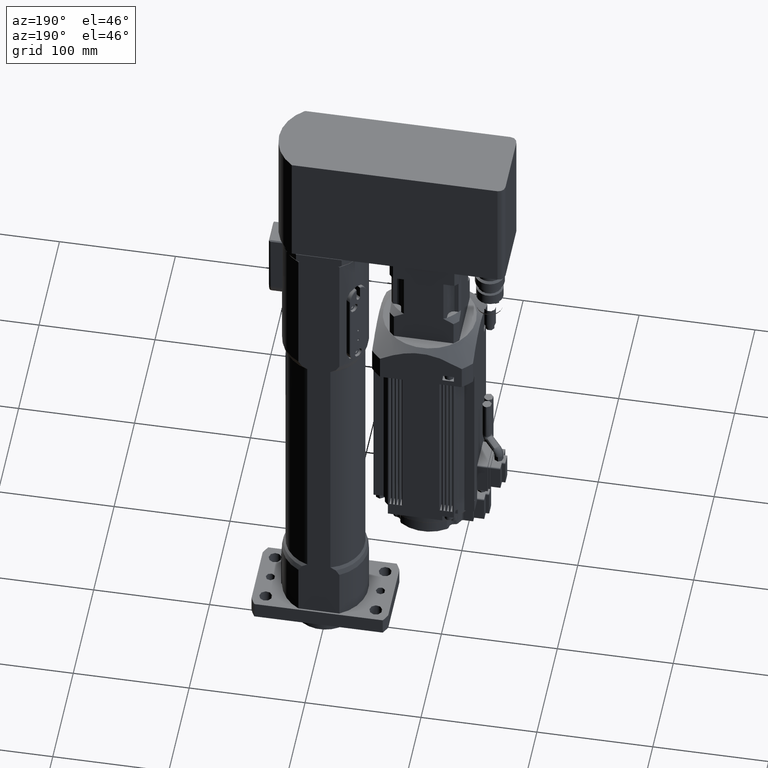
[diagram: clean part render]
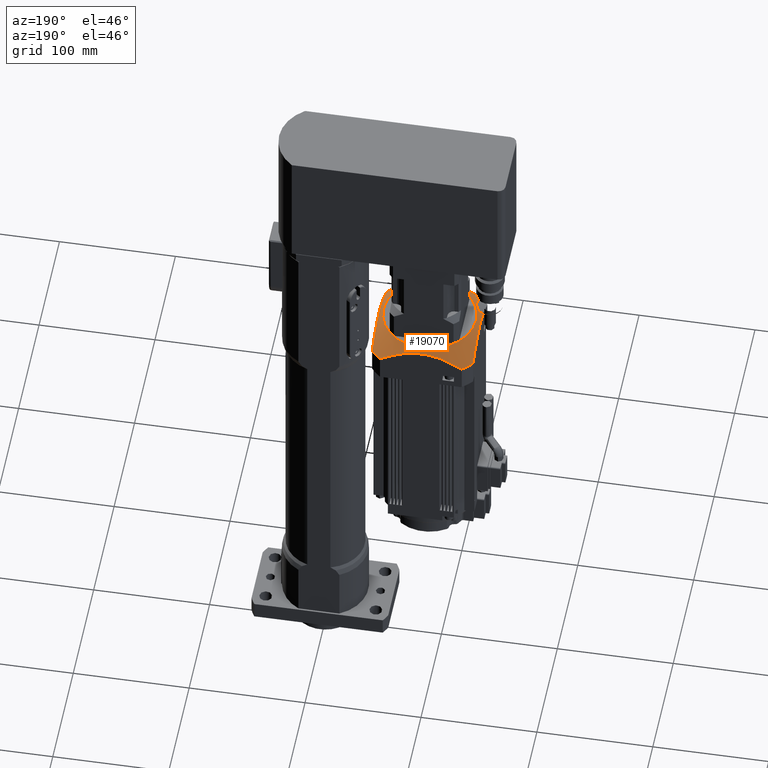
[diagram: same view with one face highlighted and labeled with its STEP entity id]
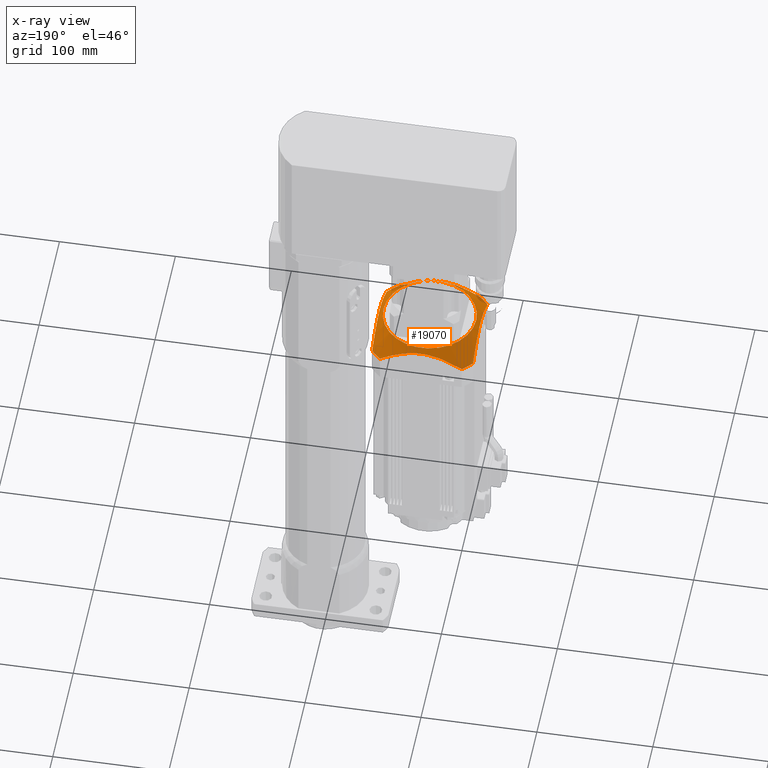
[diagram: x-ray of the same camera — body ghosted, the highlighted face saturated]
A machine part, auxiliary view. The second image highlights one B-rep face of the part: STEP entity #19070.
The next image is the same camera in x-ray: the body ghosted, the highlighted face saturated — about 4% of this face is hidden behind the body in this view.
In plain terms, the highlighted conical surface has half-angle 45 deg.
Its self-contained STEP definition (entity closure, byte-faithful):
#53=(
BOUNDED_CURVE()
B_SPLINE_CURVE(2,(#30013,#30014,#30015),.UNSPECIFIED.,.F.,.F.)
B_SPLINE_CURVE_WITH_KNOTS((3,3),(0.,3.74165738677394),.UNSPECIFIED.)
CURVE()
GEOMETRIC_REPRESENTATION_ITEM()
RATIONAL_B_SPLINE_CURVE((1.,1.14367816091954,1.14367816091954))
REPRESENTATION_ITEM('')
);
#54=(
BOUNDED_CURVE()
B_SPLINE_CURVE(2,(#30019,#30020,#30021),.UNSPECIFIED.,.F.,.F.)
B_SPLINE_CURVE_WITH_KNOTS((3,3),(0.,7.48331477354788),.UNSPECIFIED.)
CURVE()
GEOMETRIC_REPRESENTATION_ITEM()
RATIONAL_B_SPLINE_CURVE((1.,1.28735632183908,1.))
REPRESENTATION_ITEM('')
);
#55=(
BOUNDED_CURVE()
B_SPLINE_CURVE(2,(#30025,#30026,#30027),.UNSPECIFIED.,.F.,.F.)
B_SPLINE_CURVE_WITH_KNOTS((3,3),(0.,7.48331477354788),.UNSPECIFIED.)
CURVE()
GEOMETRIC_REPRESENTATION_ITEM()
RATIONAL_B_SPLINE_CURVE((1.,1.28735632183908,1.))
REPRESENTATION_ITEM('')
);
#56=(
BOUNDED_CURVE()
B_SPLINE_CURVE(2,(#30031,#30032,#30033),.UNSPECIFIED.,.F.,.F.)
B_SPLINE_CURVE_WITH_KNOTS((3,3),(0.,7.48331477354788),.UNSPECIFIED.)
CURVE()
GEOMETRIC_REPRESENTATION_ITEM()
RATIONAL_B_SPLINE_CURVE((1.,1.28735632183908,1.))
REPRESENTATION_ITEM('')
);
#57=(
BOUNDED_CURVE()
B_SPLINE_CURVE(2,(#30036,#30037,#30038),.UNSPECIFIED.,.F.,.F.)
B_SPLINE_CURVE_WITH_KNOTS((3,3),(3.74165738677394,7.48331477354788),
 .UNSPECIFIED.)
CURVE()
GEOMETRIC_REPRESENTATION_ITEM()
RATIONAL_B_SPLINE_CURVE((1.14367816091954,1.14367816091954,1.))
REPRESENTATION_ITEM('')
);
#348=CONICAL_SURFACE('',#20588,48.,0.785398163397449);
#1908=LINE('',#30011,#3525);
#3525=VECTOR('',#24432,48.);
#5081=FACE_OUTER_BOUND('',#6213,.T.);
#6213=EDGE_LOOP('',(#14798,#14799,#14800,#14801,#14802,#14803,#14804,#14805,
#14806,#14807,#14808,#14809));
#7330=CIRCLE('',#20583,40.);
#7335=CIRCLE('',#20589,56.);
#7336=CIRCLE('',#20590,56.);
#7337=CIRCLE('',#20591,56.);
#7338=CIRCLE('',#20592,56.);
#8614=VERTEX_POINT('',#29991);
#8623=VERTEX_POINT('',#30010);
#8624=VERTEX_POINT('',#30012);
#8625=VERTEX_POINT('',#30016);
#8626=VERTEX_POINT('',#30018);
#8627=VERTEX_POINT('',#30022);
#8628=VERTEX_POINT('',#30024);
#8629=VERTEX_POINT('',#30028);
#8630=VERTEX_POINT('',#30030);
#8631=VERTEX_POINT('',#30034);
#10810=EDGE_CURVE('',#8614,#8614,#7330,.T.);
#10819=EDGE_CURVE('',#8614,#8623,#1908,.T.);
#10820=EDGE_CURVE('',#8624,#8623,#53,.T.);
#10821=EDGE_CURVE('',#8625,#8624,#7335,.T.);
#10822=EDGE_CURVE('',#8626,#8625,#54,.T.);
#10823=EDGE_CURVE('',#8627,#8626,#7336,.T.);
#10824=EDGE_CURVE('',#8628,#8627,#55,.T.);
#10825=EDGE_CURVE('',#8629,#8628,#7337,.T.);
#10826=EDGE_CURVE('',#8630,#8629,#56,.T.);
#10827=EDGE_CURVE('',#8631,#8630,#7338,.T.);
#10828=EDGE_CURVE('',#8623,#8631,#57,.T.);
#14798=ORIENTED_EDGE('',*,*,#10810,.F.);
#14799=ORIENTED_EDGE('',*,*,#10819,.T.);
#14800=ORIENTED_EDGE('',*,*,#10820,.F.);
#14801=ORIENTED_EDGE('',*,*,#10821,.F.);
#14802=ORIENTED_EDGE('',*,*,#10822,.F.);
#14803=ORIENTED_EDGE('',*,*,#10823,.F.);
#14804=ORIENTED_EDGE('',*,*,#10824,.F.);
#14805=ORIENTED_EDGE('',*,*,#10825,.F.);
#14806=ORIENTED_EDGE('',*,*,#10826,.F.);
#14807=ORIENTED_EDGE('',*,*,#10827,.F.);
#14808=ORIENTED_EDGE('',*,*,#10828,.F.);
#14809=ORIENTED_EDGE('',*,*,#10819,.F.);
#19070=ADVANCED_FACE('',(#5081),#348,.T.);
#20583=AXIS2_PLACEMENT_3D('',#29992,#24416,#24417);
#20588=AXIS2_PLACEMENT_3D('',#30009,#24430,#24431);
#20589=AXIS2_PLACEMENT_3D('',#30017,#24433,#24434);
#20590=AXIS2_PLACEMENT_3D('',#30023,#24435,#24436);
#20591=AXIS2_PLACEMENT_3D('',#30029,#24437,#24438);
#20592=AXIS2_PLACEMENT_3D('',#30035,#24439,#24440);
#24416=DIRECTION('center_axis',(2.46519032881568E-32,4.87512283120822E-48,
1.));
#24417=DIRECTION('ref_axis',(-1.,2.7755575615629E-17,2.46519032881568E-32));
#24430=DIRECTION('center_axis',(-2.46519032881568E-32,-4.87512283120822E-48,
-1.));
#24431=DIRECTION('ref_axis',(-1.,2.7755575615629E-17,2.46519032881568E-32));
#24432=DIRECTION('',(0.707106781186548,-1.06221761357097E-16,-0.707106781186547));
#24433=DIRECTION('center_axis',(-2.46519032881568E-32,-4.87512283120822E-48,
-1.));
#24434=DIRECTION('ref_axis',(0.776785714285714,0.629764999092227,-1.91492463041932E-32));
#24435=DIRECTION('center_axis',(-2.46519032881568E-32,-4.87512283120822E-48,
-1.));
#24436=DIRECTION('ref_axis',(-0.629764999092227,0.776785714285714,1.55249058518877E-32));
#24437=DIRECTION('center_axis',(-2.46519032881568E-32,-4.87512283120822E-48,
-1.));
#24438=DIRECTION('ref_axis',(-0.776785714285714,-0.629764999092227,1.91492463041932E-32));
#24439=DIRECTION('center_axis',(-2.46519032881568E-32,-4.87512283120822E-48,
-1.));
#24440=DIRECTION('ref_axis',(0.629764999092227,-0.776785714285714,-1.55249058518877E-32));
#29991=CARTESIAN_POINT('',(-49.9999999999999,1.22250262100974E-13,360.500000000001));
#29992=CARTESIAN_POINT('Origin',(-89.9999999999999,1.28259072322189E-13,
360.500000000001));
#30009=CARTESIAN_POINT('Origin',(-89.9999999999999,1.28259072322189E-13,
352.500000000001));
#30010=CARTESIAN_POINT('',(-46.4999999999999,1.21048607360375E-13,357.000000000001));
#30011=CARTESIAN_POINT('',(-41.9999999999999,1.21048500056731E-13,352.500000000001));
#30012=CARTESIAN_POINT('',(-46.4999999999999,35.2668399491648,344.500000000001));
#30013=CARTESIAN_POINT('Ctrl Pts',(-46.4999999999999,35.2668399491648,344.500000000001));
#30014=CARTESIAN_POINT('Ctrl Pts',(-46.4999999999999,15.4181662089314,357.000000000001));
#30015=CARTESIAN_POINT('Ctrl Pts',(-46.4999999999999,1.20372723514133E-13,
357.000000000001));
#30016=CARTESIAN_POINT('',(-54.7331600508352,43.5000000000001,344.500000000001));
#30017=CARTESIAN_POINT('Origin',(-89.9999999999999,1.28259072322189E-13,
344.500000000001));
#30018=CARTESIAN_POINT('',(-125.266839949165,43.5000000000001,344.500000000001));
#30019=CARTESIAN_POINT('Ctrl Pts',(-125.266839949165,43.5000000000001,344.500000000001));
#30020=CARTESIAN_POINT('Ctrl Pts',(-89.9999999999999,43.5000000000001,366.709821428573));
#30021=CARTESIAN_POINT('Ctrl Pts',(-54.7331600508352,43.5000000000001,344.500000000001));
#30022=CARTESIAN_POINT('',(-133.5,35.2668399491648,344.500000000001));
#30023=CARTESIAN_POINT('Origin',(-89.9999999999999,1.28259072322189E-13,
344.500000000001));
#30024=CARTESIAN_POINT('',(-133.5,-35.2668399491646,344.500000000001));
#30025=CARTESIAN_POINT('Ctrl Pts',(-133.5,-35.2668399491646,344.500000000001));
#30026=CARTESIAN_POINT('Ctrl Pts',(-133.5,1.29466439861469E-13,366.709821428573));
#30027=CARTESIAN_POINT('Ctrl Pts',(-133.5,35.2668399491648,344.500000000001));
#30028=CARTESIAN_POINT('',(-125.266839949165,-43.4999999999999,344.500000000001));
#30029=CARTESIAN_POINT('Origin',(-89.9999999999999,1.28259072322189E-13,
344.500000000001));
#30030=CARTESIAN_POINT('',(-54.7331600508352,-43.4999999999999,344.500000000001));
#30031=CARTESIAN_POINT('Ctrl Pts',(-54.7331600508352,-43.4999999999999,
344.500000000001));
#30032=CARTESIAN_POINT('Ctrl Pts',(-89.9999999999999,-43.4999999999999,
366.709821428573));
#30033=CARTESIAN_POINT('Ctrl Pts',(-125.266839949165,-43.4999999999999,
344.500000000001));
#30034=CARTESIAN_POINT('',(-46.4999999999999,-35.2668399491646,344.500000000001));
#30035=CARTESIAN_POINT('Origin',(-89.9999999999999,1.28259072322189E-13,
344.500000000001));
#30036=CARTESIAN_POINT('Ctrl Pts',(-46.4999999999999,1.20372723514133E-13,
357.000000000001));
#30037=CARTESIAN_POINT('Ctrl Pts',(-46.4999999999999,-15.4181662089312,
357.000000000001));
#30038=CARTESIAN_POINT('Ctrl Pts',(-46.4999999999999,-35.2668399491646,
344.500000000001));